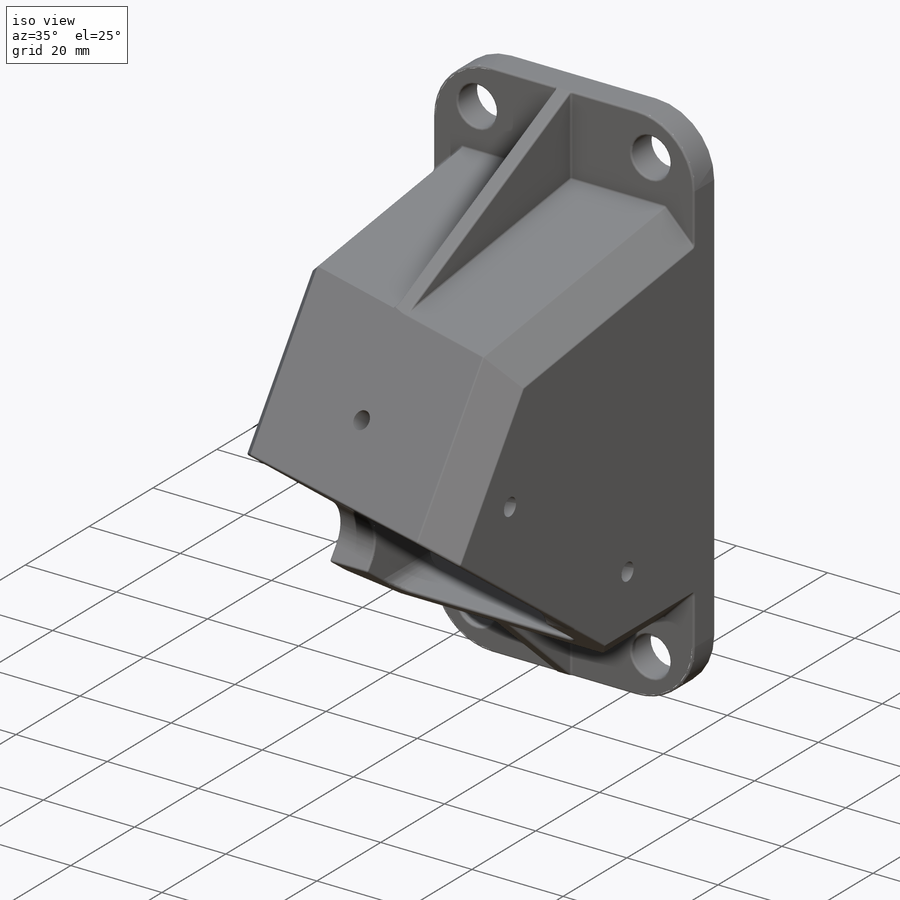
[diagram: iso view]
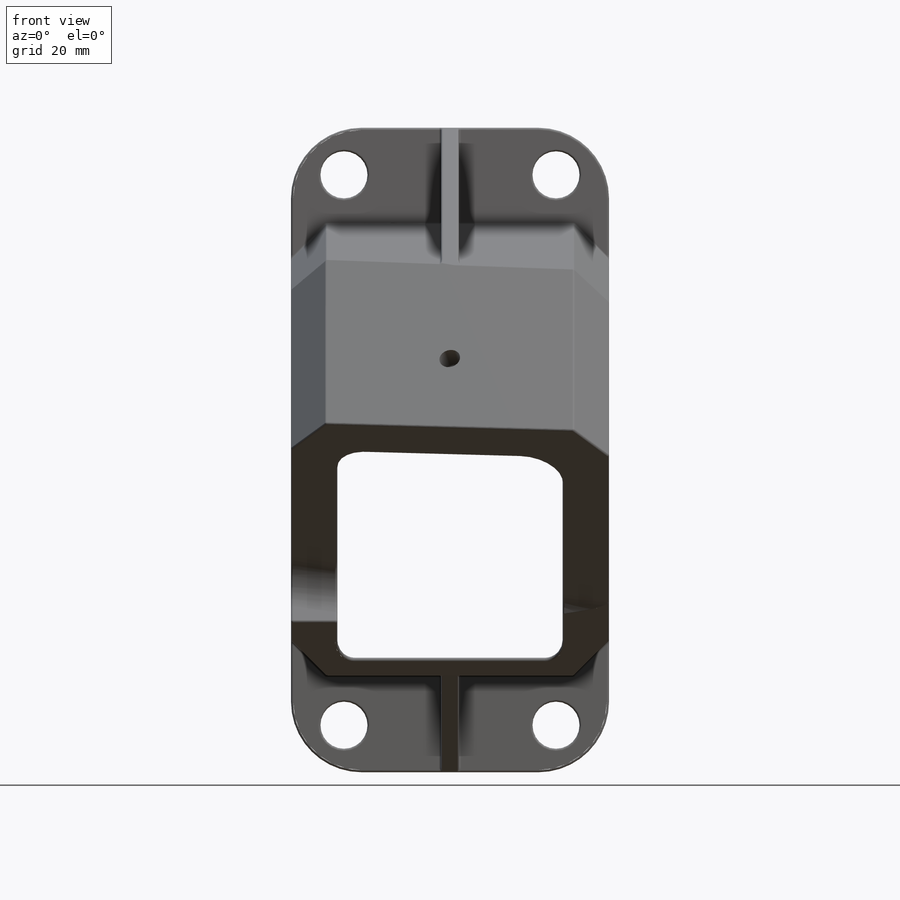
[diagram: front view]
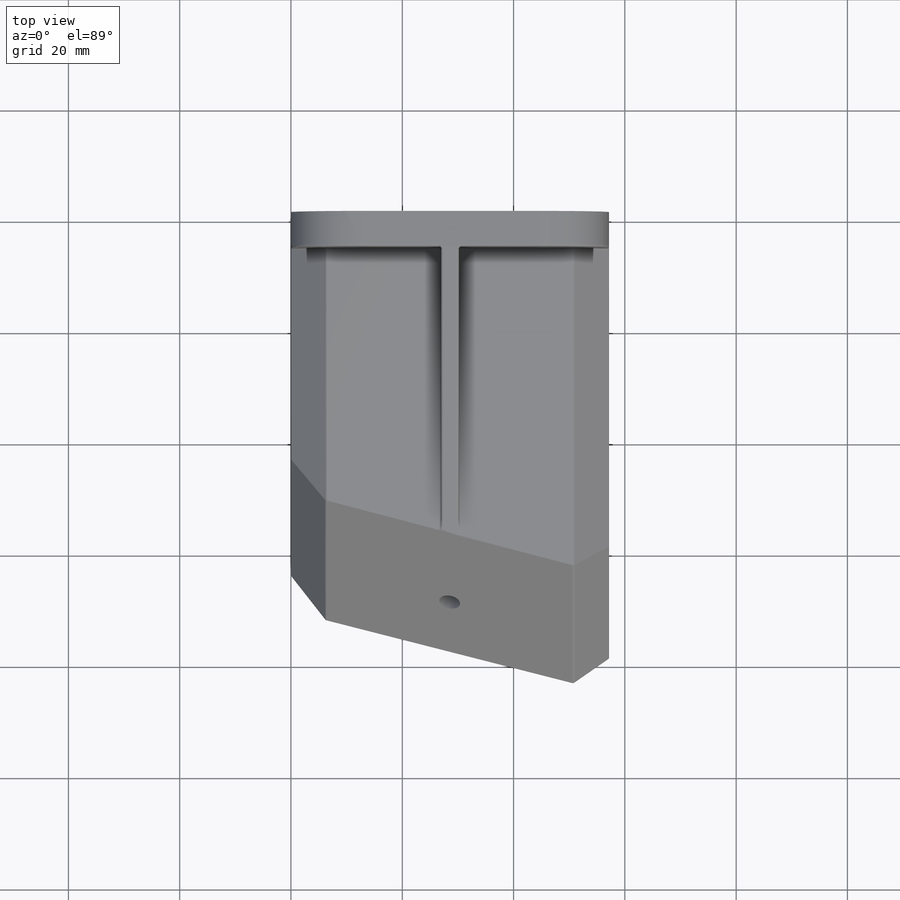
[diagram: top view]
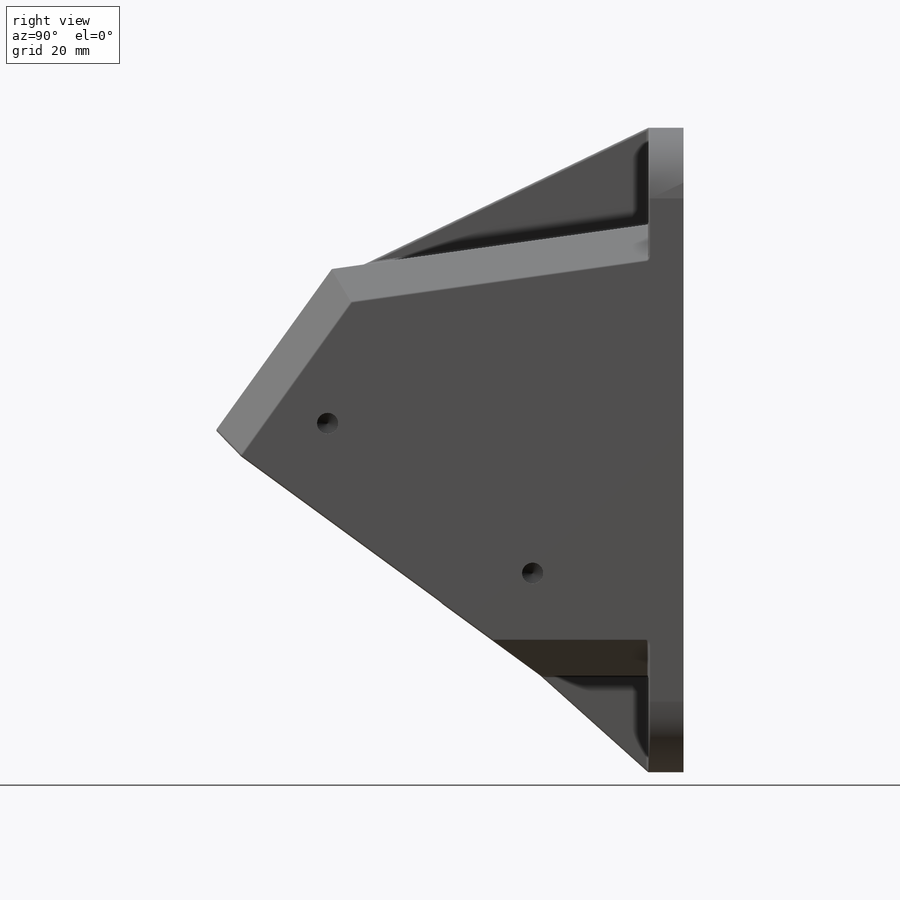
[diagram: right view]
SOLIDWORKS PART (.sldprt)
format: sldprt  version: not decoded by parser v0  size: 1,536,000 bytes
history: native  units: mm
features: sketch x32, fillet x20, cut_extrude x14, extrude x6, thread x5, hole x3, chamfer x2, material x1, shell x1, plane x1 (+16 scaffold rows collapsed)
feature tree (101):
  scaffold x16  (default folders/planes/origin — collapsed)
  material  "2024 Alloy"
  sketch  "Sketch1"  dims[D1=57.15mm D2=115.824mm]
  extrude  "Extrude1"  Depth=6.35mm
  sketch  "Sketch2"  dims[D1=17.399mm D2=17.399mm D3=84.7725mm]
  sketch  "Sketch3"  dims[D1=17.399mm D2=17.399mm]
  extrude  "Extrude2"  Depth=84.7725mm
  sketch  "Sketch4"  dims[c1.D3=8.7376mm c2.D3=~82.007454deg c2.D1=8.7376mm c2.D2=62.23mm]
  cut_extrude  "Extrude3"  [1 undecoded]
  chamfer  "Chamfer2"  Distance=6.35mm Angle=45deg
  sketch  "Sketch5"  dims[c1.D1=28.1051mm c1.D2=34.7472mm c1.D3=73.9775mm c1.D5=~56.402484mm c2.D5=~141.822895deg c3.D5=~26.169293mm c4.D5=~38.177105deg c5.D5=18.1229mm c6.D5=~88.334234deg c7.D5=18.1229mm c8.D5=~91.960402deg c9.D5=18.1229mm c10.D5=~91.960402deg c11.D5=~31.539304mm c12.D5=~46.934906deg c13.D5=~56.402484mm c14.D5=~133.065094deg c15.D5=~56.402484mm c16.D5=~228.218109deg c17.D5=~32.06108mm c18.D5=~227.586989deg c19.D5=~31.331763mm c20.D5=~226.668006deg c21.D5=~32.439259mm c22.D5=~228.043459deg c23.D5=~32.576802mm c24.D5=~227.77508deg c25.D5=~32.576802mm c26.D5=~34.232374deg c27.D5=~32.576802mm c28.D5=~132.22492deg c29.D5=~32.628563mm c30.D5=~227.675022deg c31.D5=~53.863218mm c32.D5=~135.122708deg c33.D5=~33.292641mm c34.D5=~133.565224deg c35.D5=32.9412mm c36.D5=~132.918695deg c37.D5=~33.116393mm c38.D5=~133.243674deg c39.D5=~33.204386mm c40.D5=~133.404876deg c41.D5=~33.257308mm c42.D5=~133.501187deg c43.D5=~33.292641mm c44.D5=~133.565224deg c45.D5=~33.381155mm c46.D5=~133.724722deg c46.D4=54.483mm]
  cut_extrude  "Extrude4"  [1 undecoded]
  sketch  "Sketch6"
  cut_extrude  "Extrude5"  [1 undecoded]
  sketch  "Sketch7"  dims[D1=45.72mm]
  cut_extrude  "Extrude6"  [1 undecoded]
  chamfer  "Chamfer4"  Distance=6.35mm Angle=45deg
  shell  "Shell1"  Thickness=3.175mm
  fillet  "Fillet1"  Radius=7.62mm
  fillet  "Fillet2"  Radius=7.62mm
  fillet  "Fillet4"  Radius=7.62mm
  sketch  "Sketch8"  dims[D1=0.0mm]
  cut_extrude  "Extrude7"  [1 undecoded]
  sketch  "Sketch15"  dims[D1=19.05mm D2=19.05mm]
  extrude  "Extrude13"  Depth=8.3312mm
  sketch  "Sketch9"  dims[D1=5.6261mm]
  sketch  "Sketch10"  dims[D1=9.8425mm]
  sketch  "3DSketch1"
  sketch  "Sketch11"  dims[D1=6.35mm]
  cut_extrude  "Extrude8"  [1 undecoded]
  sketch  "Sketch16"  dims[D1=21.8694mm D2=19.05mm]
  extrude  "Extrude14"  Depth=8.3312mm
  sketch  "Sketch17"  dims[D1=2.54mm]
  extrude  "Extrude16"  Depth=8.3312mm
  cut_extrude  "Extrude17"  [1 undecoded]
  sketch  "Sketch11<3>"
  sketch  "Sketch18"
  cut_extrude  "Extrude18"  [1 undecoded]
  sketch  "Sketch19"  dims[D1=0.0mm]
  cut_extrude  "Extrude19"  [1 undecoded]
  sketch  "Sketch20"  dims[D1=0.0mm]
  cut_extrude  "Extrude20"  [1 undecoded]
  sketch  "Sketch21"
  sketch  "Sketch23"
  cut_extrude  "Extrude22"  [1 undecoded]
  sketch  "Sketch24"  dims[D1=0.0mm]
  sketch  "Sketch25"
  cut_extrude  "Extrude24"  [1 undecoded]
  fillet  "Fillet7"  Radius=6.35mm
  fillet  "Fillet8"  Radius=3.175mm
  plane  "Support Plane"
  sketch  "Sketch26"
  extrude  "Extrude25"  Depth=1.5875mm
  sketch  "Sketch28"  dims[D1=2.54mm]
  cut_extrude  "Extrude27"  [1 undecoded]
  sketch  "Sketch30"  dims[c1.D7=8.4582mm c1.D1=19.05mm c1.D2=19.05mm c1.D3=19.05mm c1.D4=~15.431785mm c2.D4=90.0deg c3.D4=19.05mm c3.D5=8.4582mm c3.D6=8.4582mm]
  cut_extrude  "Extrude28"  [1 undecoded]
  fillet  "Fillet12"  Radius=12.7mm
  hole  "#10-24 Tapped Hole1"  Diameter=3.7973mm Depth=4.572mm
  sketch  "3DSketch2"  dims[D1=14.986mm]
  sketch  "Sketch31"  dims[hole-wizard template sketch: 47 standard entries collapsed; hole parameters kept: c15.Tap Drill Depth=4.572mm c15.D3=~14.816244mm c15.Drill Angle=118.0deg]
  thread  "Hole Thread1"  Diameter=4.572mm  [1 undecoded]
  hole  "#10-24 Tapped Hole2"  Diameter=3.7973mm Depth=4.572mm
  sketch  "3DSketch3"  dims[D1=14.0208mm D2=45.6311mm D3=9.271mm]
  sketch  "Sketch32"  dims[hole-wizard template sketch: 47 standard entries collapsed; hole parameters kept: c15.Tap Drill Depth=4.572mm c15.D3=~14.816244mm c15.Drill Angle=118.0deg]
  thread  "Hole Thread2"  Diameter=4.572mm  [1 undecoded]
  thread  "Hole Thread3"  Diameter=4.572mm  [1 undecoded]
  hole  "#10-24 Tapped Hole3"  Diameter=3.7973mm Depth=4.572mm
  sketch  "3DSketch4"  dims[D1=31.3563mm D2=14.859mm D3=11.8491mm]
  sketch  "Sketch33"  dims[hole-wizard template sketch: 47 standard entries collapsed; hole parameters kept: c15.Tap Drill Depth=4.572mm c15.D3=~14.816244mm c15.Drill Angle=118.0deg]
  thread  "Hole Thread4"  Diameter=4.572mm  [1 undecoded]
  thread  "Hole Thread5"  Diameter=4.572mm  [1 undecoded]
  fillet  "Fillet13"  Radius=0.396875mm
  fillet  "Fillet14"  Radius=0.396875mm
  fillet  "Fillet15"  Radius=0.396875mm
  fillet  "Fillet16"  Radius=0.396875mm
  fillet  "Fillet17"  Radius=0.396875mm
  fillet  "Fillet18"  Radius=0.396875mm
  fillet  "Fillet19"  Radius=0.396875mm
  fillet  "Fillet20"  Radius=0.396875mm
  fillet  "Fillet21"  Radius=0.396875mm
  fillet  "Fillet22"  Radius=0.396875mm
  fillet  "Fillet23"  Radius=0.396875mm
  fillet  "Fillet24"  Radius=0.396875mm
  fillet  "Fillet25"  Radius=0.396875mm
  fillet  "Fillet26"  Radius=0.396875mm
decode coverage: 61 of 83 modeling features carry decoded parameters
note: ~ marks probable driven/reference dimensions
note: 19 parameter values undecoded
summary: no parameter record found for 14 features
note: suppression state not decoded; provenance and decode notes live in map.json
